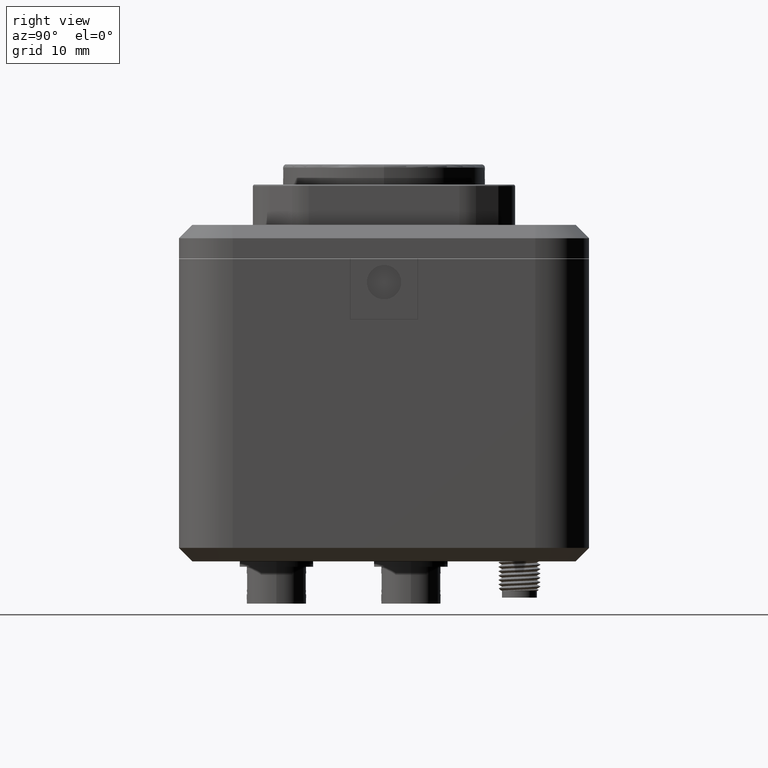
[diagram: clean part render]
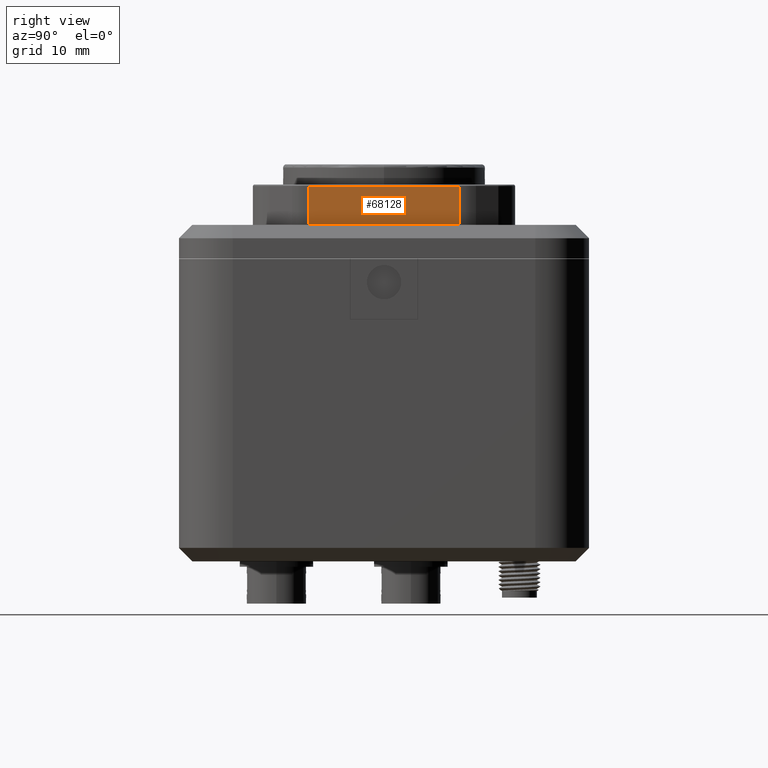
[diagram: same view with one face highlighted and labeled with its STEP entity id]
A machine part, right view. The second image highlights one B-rep face of the part: STEP entity #68128.
In plain terms, the highlighted planar face has unit normal (1, 0, 0).
Its self-contained STEP definition (entity closure, byte-faithful):
#636 = DIRECTION ( 'NONE',  ( 1.000000000000000000, 0.000000000000000000, 0.000000000000000000 ) ) ;
#1750 = EDGE_CURVE ( 'NONE', #14982, #32928, #64386, .T. ) ;
#6008 = VECTOR ( 'NONE', #18090, 1000.000000000000000 ) ;
#9258 = DIRECTION ( 'NONE',  ( 0.000000000000000000, -1.000000000000000000, 0.000000000000000000 ) ) ;
#11192 = VECTOR ( 'NONE', #47792, 1000.000000000000000 ) ;
#12705 = ORIENTED_EDGE ( 'NONE', *, *, #72697, .T. ) ;
#14982 = VERTEX_POINT ( 'NONE', #52215 ) ;
#18090 = DIRECTION ( 'NONE',  ( 0.000000000000000000, 0.000000000000000000, 1.000000000000000000 ) ) ;
#18824 = ORIENTED_EDGE ( 'NONE', *, *, #20725, .T. ) ;
#20725 = EDGE_CURVE ( 'NONE', #39408, #34308, #62133, .T. ) ;
#21447 = CARTESIAN_POINT ( 'NONE',  ( 39.41886832694000020, 9.172297573722680397, 35.58307532111199833 ) ) ;
#23545 = PLANE ( 'NONE',  #70699 ) ;
#25229 = LINE ( 'NONE', #46349, #11192 ) ;
#25658 = VECTOR ( 'NONE', #9258, 1000.000000000000000 ) ;
#28385 = ORIENTED_EDGE ( 'NONE', *, *, #1750, .F. ) ;
#32928 = VERTEX_POINT ( 'NONE', #21447 ) ;
#34010 = CARTESIAN_POINT ( 'NONE',  ( 39.41886832694000020, 36.86178579707100056, 41.33307532111199833 ) ) ;
#34308 = VERTEX_POINT ( 'NONE', #65420 ) ;
#36893 = ORIENTED_EDGE ( 'NONE', *, *, #41870, .F. ) ;
#39408 = VERTEX_POINT ( 'NONE', #61094 ) ;
#41282 = CARTESIAN_POINT ( 'NONE',  ( 39.41886832694000020, 36.86178579707100056, 35.58307532111199833 ) ) ;
#41585 = EDGE_LOOP ( 'NONE', ( #12705, #18824, #36893, #28385 ) ) ;
#41870 = EDGE_CURVE ( 'NONE', #32928, #34308, #25229, .T. ) ;
#46349 = CARTESIAN_POINT ( 'NONE',  ( 39.41886832694000020, 9.172297573722680397, 35.58307532111199833 ) ) ;
#47792 = DIRECTION ( 'NONE',  ( 0.000000000000000000, 0.000000000000000000, 1.000000000000000000 ) ) ;
#52215 = CARTESIAN_POINT ( 'NONE',  ( 39.41886832694000020, 31.55127402041932427, 35.58307532111199833 ) ) ;
#57210 = FACE_OUTER_BOUND ( 'NONE', #41585, .T. ) ;
#61094 = CARTESIAN_POINT ( 'NONE',  ( 39.41886832694000020, 31.55127402041932427, 41.33307532111199833 ) ) ;
#62133 = LINE ( 'NONE', #34010, #68930 ) ;
#63228 = DIRECTION ( 'NONE',  ( 0.000000000000000000, -1.000000000000000000, 0.000000000000000000 ) ) ;
#64283 = CARTESIAN_POINT ( 'NONE',  ( 39.41886832694000020, 31.55127402041932427, 35.58307532111199833 ) ) ;
#64386 = LINE ( 'NONE', #65836, #25658 ) ;
#65420 = CARTESIAN_POINT ( 'NONE',  ( 39.41886832694000020, 9.172297573722680397, 41.33307532111199833 ) ) ;
#65836 = CARTESIAN_POINT ( 'NONE',  ( 39.41886832694000020, 20.36178579707100056, 35.58307532111199833 ) ) ;
#68128 = ADVANCED_FACE ( 'NONE', ( #57210 ), #23545, .T. ) ;
#68333 = DIRECTION ( 'NONE',  ( 0.000000000000000000, 1.000000000000000000, 0.000000000000000000 ) ) ;
#68930 = VECTOR ( 'NONE', #63228, 1000.000000000000000 ) ;
#69122 = LINE ( 'NONE', #64283, #6008 ) ;
#70699 = AXIS2_PLACEMENT_3D ( 'NONE', #41282, #636, #68333 ) ;
#72697 = EDGE_CURVE ( 'NONE', #14982, #39408, #69122, .T. ) ;